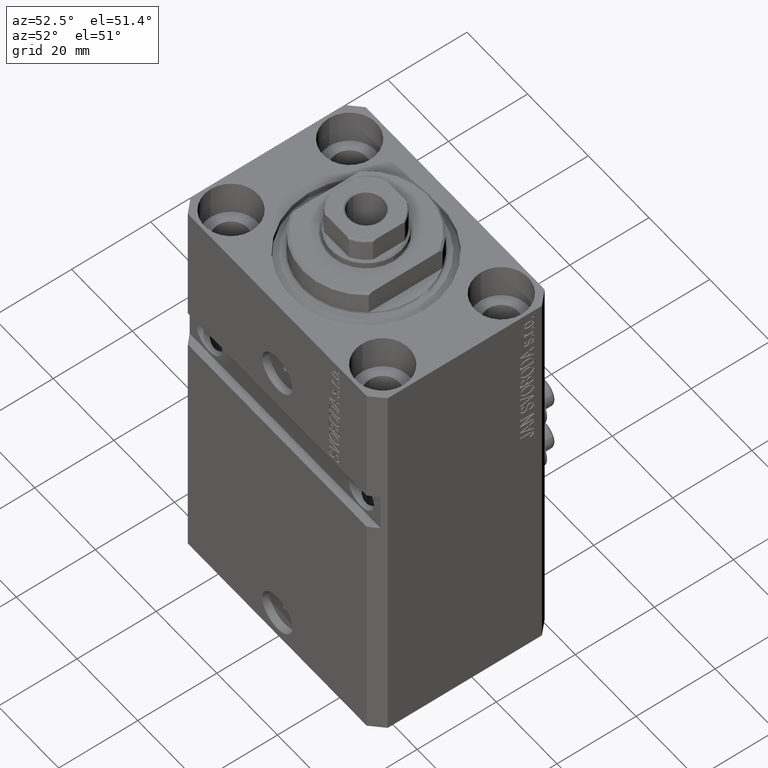
[diagram: clean part render]
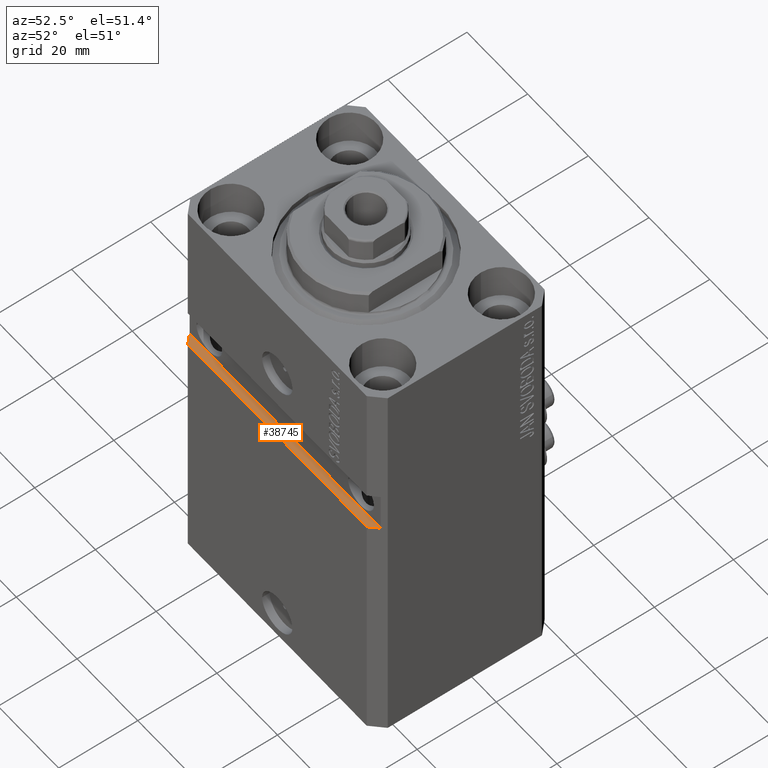
[diagram: same view with one face highlighted and labeled with its STEP entity id]
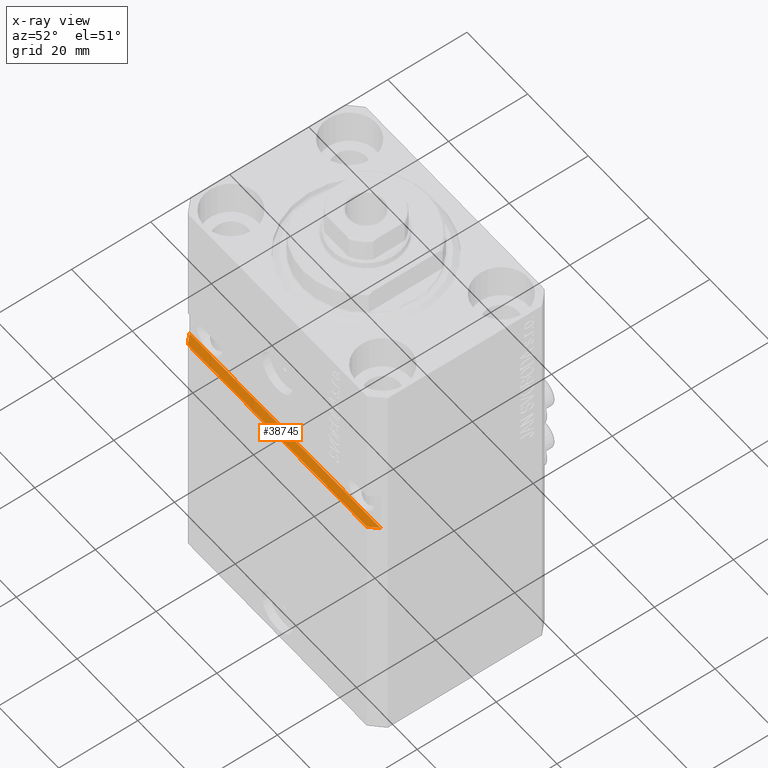
[diagram: x-ray of the same camera — body ghosted, the highlighted face saturated]
A machine part, auxiliary view. The second image highlights one B-rep face of the part: STEP entity #38745.
The next image is the same camera in x-ray: the body ghosted, the highlighted face saturated — about 0% of this face is hidden behind the body in this view.
In plain terms, the highlighted planar face has unit normal (0, 0, -1).
Its self-contained STEP definition (entity closure, byte-faithful):
#5527 = DIRECTION ( 'NONE',  ( 1.000000000000000000, 1.067522139062765303E-16, 1.067522139062765303E-16 ) ) ;
#5716 = AXIS2_PLACEMENT_3D ( 'NONE', #46860, #21601, #36372 ) ;
#7002 = CARTESIAN_POINT ( 'NONE',  ( -32.49999999999650413, -22.49999999999949907, -41.99999999999999289 ) ) ;
#7342 = LINE ( 'NONE', #22614, #31068 ) ;
#8994 = EDGE_CURVE ( 'NONE', #46655, #12394, #7342, .T. ) ;
#10720 = VECTOR ( 'NONE', #5527, 1000.000000000000000 ) ;
#12394 = VERTEX_POINT ( 'NONE', #18168 ) ;
#14884 = FACE_OUTER_BOUND ( 'NONE', #19554, .T. ) ;
#17196 = LINE ( 'NONE', #34858, #36340 ) ;
#18168 = CARTESIAN_POINT ( 'NONE',  ( 31.49999999999650413, -20.49999999999949196, -41.99999999999998579 ) ) ;
#18364 = VERTEX_POINT ( 'NONE', #18617 ) ;
#18617 = CARTESIAN_POINT ( 'NONE',  ( -31.49999999999650413, -20.49999999999949907, -41.99999999999999289 ) ) ;
#19311 = VERTEX_POINT ( 'NONE', #43672 ) ;
#19554 = EDGE_LOOP ( 'NONE', ( #32471, #47109, #31085, #25371 ) ) ;
#20338 = LINE ( 'NONE', #21054, #10720 ) ;
#20895 = EDGE_CURVE ( 'NONE', #19311, #46655, #39693, .T. ) ;
#21054 = CARTESIAN_POINT ( 'NONE',  ( -32.49999999999650413, -20.49999999999949907, -41.99999999999999289 ) ) ;
#21601 = DIRECTION ( 'NONE',  ( 1.067522139062765303E-16, 1.255495400513475380E-32, -1.000000000000000000 ) ) ;
#21917 = DIRECTION ( 'NONE',  ( 0.7071067811865483499, 0.7071067811865467956, 7.548521435980509068E-17 ) ) ;
#22614 = CARTESIAN_POINT ( 'NONE',  ( 29.49999999999650058, -22.49999999999949551, -41.99999999999999289 ) ) ;
#25371 = ORIENTED_EDGE ( 'NONE', *, *, #20895, .T. ) ;
#28956 = EDGE_CURVE ( 'NONE', #18364, #12394, #20338, .T. ) ;
#31068 = VECTOR ( 'NONE', #21917, 1000.000000000000000 ) ;
#31085 = ORIENTED_EDGE ( 'NONE', *, *, #45985, .T. ) ;
#31286 = DIRECTION ( 'NONE',  ( 0.7071067811865474617, -0.7071067811865474617, 7.548521435980497974E-17 ) ) ;
#31624 = DIRECTION ( 'NONE',  ( 1.000000000000000000, 1.067522139062765303E-16, 1.067522139062765303E-16 ) ) ;
#32112 = PLANE ( 'NONE',  #5716 ) ;
#32471 = ORIENTED_EDGE ( 'NONE', *, *, #8994, .T. ) ;
#34858 = CARTESIAN_POINT ( 'NONE',  ( -32.49999999999650413, -19.49999999999949551, -41.99999999999999289 ) ) ;
#36340 = VECTOR ( 'NONE', #31286, 1000.000000000000114 ) ;
#36372 = DIRECTION ( 'NONE',  ( -1.000000000000000000, 0.000000000000000000, -1.067522139062765303E-16 ) ) ;
#38745 = ADVANCED_FACE ( 'NONE', ( #14884 ), #32112, .F. ) ;
#39693 = LINE ( 'NONE', #7002, #40460 ) ;
#40460 = VECTOR ( 'NONE', #31624, 1000.000000000000000 ) ;
#43672 = CARTESIAN_POINT ( 'NONE',  ( -29.49999999999650413, -22.49999999999949907, -41.99999999999999289 ) ) ;
#44402 = CARTESIAN_POINT ( 'NONE',  ( 29.49999999999650058, -22.49999999999949196, -41.99999999999998579 ) ) ;
#45985 = EDGE_CURVE ( 'NONE', #18364, #19311, #17196, .T. ) ;
#46655 = VERTEX_POINT ( 'NONE', #44402 ) ;
#46860 = CARTESIAN_POINT ( 'NONE',  ( -32.49999999999650413, -20.49999999999949907, -41.99999999999999289 ) ) ;
#47109 = ORIENTED_EDGE ( 'NONE', *, *, #28956, .F. ) ;